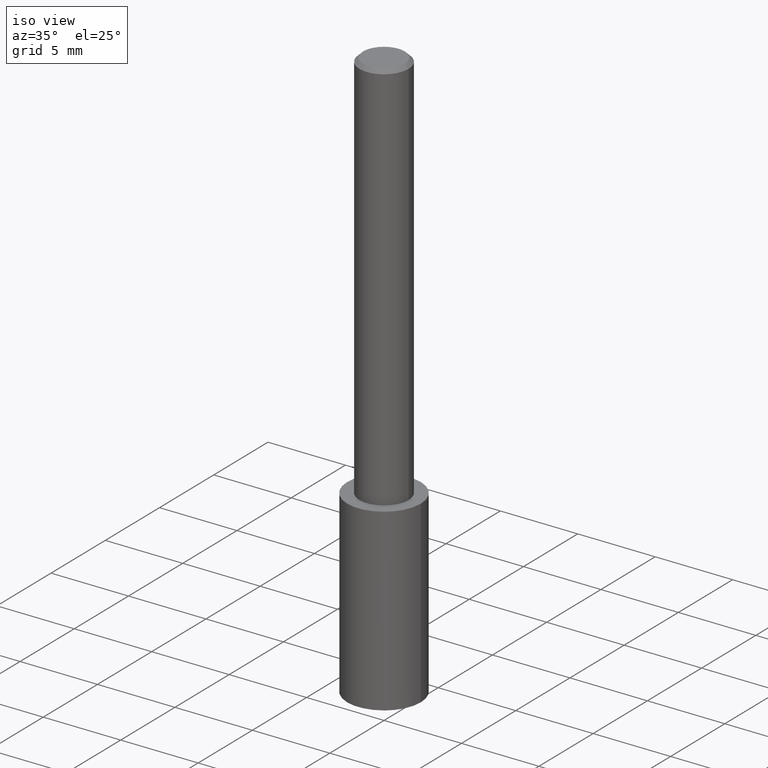
[diagram: clean part render]
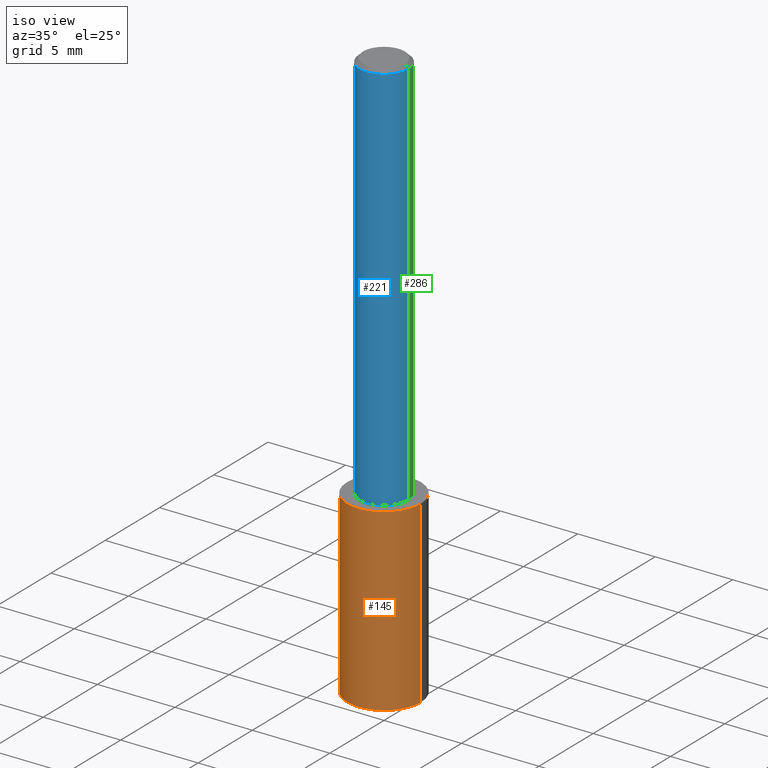
[diagram: same view with three faces highlighted in distinct colors, each labeled with its STEP entity id]
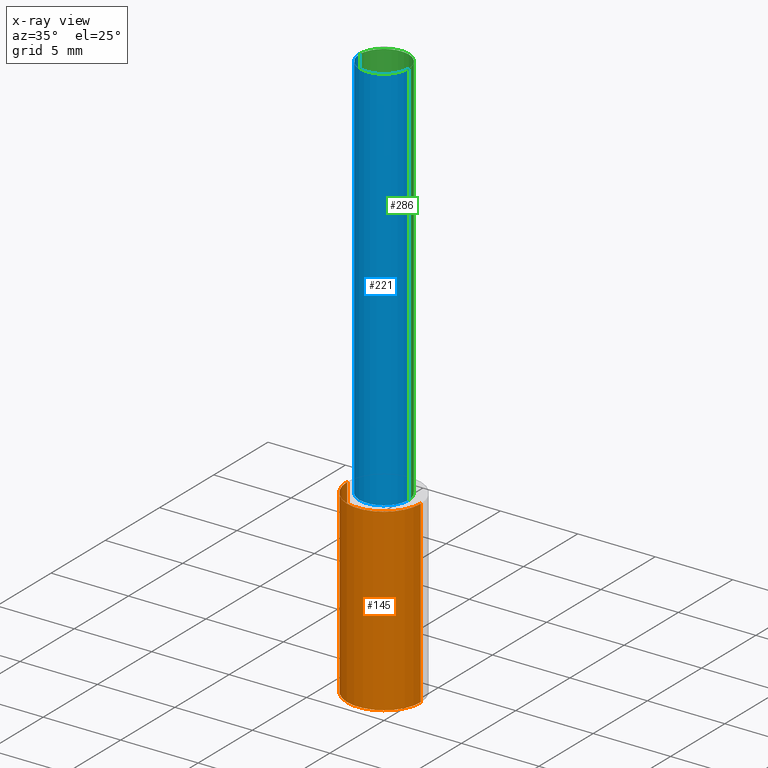
[diagram: x-ray of the same camera — body ghosted, the three highlighted faces saturated]
A machine part, iso view with three faces highlighted in distinct colors.
The next image is the same camera in x-ray (body ghosted, the three faces saturated) — at least one of them is partly hidden behind the body in this view.
Their STEP definitions:

[orange] entity #145 — the highlighted cylindrical surface (partial cylindrical patch) has radius 2.3749 mm, axis along (-0, 0, 1).
#4 = VERTEX_POINT ( 'NONE', #61 ) ;
#10 = DIRECTION ( 'NONE',  ( -2.445468806185136877E-29, 3.491481338843145188E-15, 1.000000000000000000 ) ) ;
#11 = CARTESIAN_POINT ( 'NONE',  ( 0.09349999999999998590, -5.737901249130553981E-15, -1.456400233962507951 ) ) ;
#22 = DIRECTION ( 'NONE',  ( -2.445468806185136597E-29, 3.491481338843145583E-15, 1.000000000000000000 ) ) ;
#33 = AXIS2_PLACEMENT_3D ( 'NONE', #330, #22, #116 ) ;
#39 = CARTESIAN_POINT ( 'NONE',  ( -0.09349999999999999978, -2.827123880907452502E-15, -1.000000000000000222 ) ) ;
#48 = LINE ( 'NONE', #39, #199 ) ;
#51 = AXIS2_PLACEMENT_3D ( 'NONE', #140, #115, #276 ) ;
#59 = DIRECTION ( 'NONE',  ( -2.445468806185136597E-29, 3.491481338843145583E-15, 1.000000000000000000 ) ) ;
#60 = EDGE_LOOP ( 'NONE', ( #101, #133, #235, #83 ) ) ;
#61 = CARTESIAN_POINT ( 'NONE',  ( -0.09349999999999999978, -3.623880330869323109E-15, -1.000000000000000222 ) ) ;
#63 = CARTESIAN_POINT ( 'NONE',  ( 3.561581341476047635E-29, -5.084994238766887980E-15, -1.456400233962507951 ) ) ;
#69 = EDGE_CURVE ( 'NONE', #79, #4, #48, .T. ) ;
#79 = VERTEX_POINT ( 'NONE', #238 ) ;
#83 = ORIENTED_EDGE ( 'NONE', *, *, #284, .F. ) ;
#95 = DIRECTION ( 'NONE',  ( -2.445468806185136877E-29, 3.491481338843145188E-15, 1.000000000000000000 ) ) ;
#101 = ORIENTED_EDGE ( 'NONE', *, *, #69, .F. ) ;
#110 = CIRCLE ( 'NONE', #307, 0.09349999999999999978 ) ;
#115 = DIRECTION ( 'NONE',  ( -2.445468806185136597E-29, 3.491481338843145583E-15, 1.000000000000000000 ) ) ;
#116 = DIRECTION ( 'NONE',  ( 1.000000000000000000, -6.982962677686265133E-15, 0.000000000000000000 ) ) ;
#118 = FACE_OUTER_BOUND ( 'NONE', #60, .T. ) ;
#121 = LINE ( 'NONE', #272, #262 ) ;
#133 = ORIENTED_EDGE ( 'NONE', *, *, #246, .T. ) ;
#140 = CARTESIAN_POINT ( 'NONE',  ( 2.445468806185137438E-29, -3.491481338843146371E-15, -1.000000000000000222 ) ) ;
#145 = ADVANCED_FACE ( 'NONE', ( #118 ), #217, .T. ) ;
#190 = EDGE_CURVE ( 'NONE', #265, #292, #121, .T. ) ;
#199 = VECTOR ( 'NONE', #10, 39.37007874015748143 ) ;
#217 = CYLINDRICAL_SURFACE ( 'NONE', #51, 0.09349999999999999978 ) ;
#227 = DIRECTION ( 'NONE',  ( 1.000000000000000000, -6.982962677686265133E-15, 0.000000000000000000 ) ) ;
#235 = ORIENTED_EDGE ( 'NONE', *, *, #190, .T. ) ;
#238 = CARTESIAN_POINT ( 'NONE',  ( -0.09349999999999998590, -4.420636780831194111E-15, -1.456400233962507951 ) ) ;
#246 = EDGE_CURVE ( 'NONE', #79, #265, #110, .T. ) ;
#257 = CARTESIAN_POINT ( 'NONE',  ( 0.09349999999999999978, -4.144388349206811978E-15, -1.000000000000000222 ) ) ;
#262 = VECTOR ( 'NONE', #95, 39.37007874015748143 ) ;
#265 = VERTEX_POINT ( 'NONE', #11 ) ;
#272 = CARTESIAN_POINT ( 'NONE',  ( 0.09349999999999999978, -4.144388349206811978E-15, -1.000000000000000222 ) ) ;
#276 = DIRECTION ( 'NONE',  ( 1.000000000000000000, -6.982962677686265133E-15, 0.000000000000000000 ) ) ;
#284 = EDGE_CURVE ( 'NONE', #4, #292, #336, .T. ) ;
#292 = VERTEX_POINT ( 'NONE', #257 ) ;
#307 = AXIS2_PLACEMENT_3D ( 'NONE', #63, #59, #227 ) ;
#330 = CARTESIAN_POINT ( 'NONE',  ( 2.445468806185136877E-29, -3.491481338843145977E-15, -1.000000000000000222 ) ) ;
#336 = CIRCLE ( 'NONE', #33, 0.09349999999999999978 ) ;

[blue] entity #221 — the highlighted cylindrical surface (edge-blend (fillet) strip) has radius 1.5875 mm, axis along (-0, 0, 1).
#1 = CARTESIAN_POINT ( 'NONE',  ( 0.06250000000000012490, -3.927916506198539224E-15, -1.000000000000000222 ) ) ;
#8 = ORIENTED_EDGE ( 'NONE', *, *, #222, .T. ) ;
#16 = CARTESIAN_POINT ( 'NONE',  ( -0.06250000000000006939, 4.440892098500631092E-16, -3.074334431409319267E-30 ) ) ;
#18 = DIRECTION ( 'NONE',  ( -2.445468806185136877E-29, 3.491481338843145188E-15, 1.000000000000000000 ) ) ;
#19 = DIRECTION ( 'NONE',  ( -2.445468806185136877E-29, 3.491481338843145188E-15, 1.000000000000000000 ) ) ;
#26 = VECTOR ( 'NONE', #18, 39.37007874015748143 ) ;
#35 = ORIENTED_EDGE ( 'NONE', *, *, #129, .F. ) ;
#46 = FACE_OUTER_BOUND ( 'NONE', #291, .T. ) ;
#50 = LINE ( 'NONE', #16, #231 ) ;
#68 = VERTEX_POINT ( 'NONE', #191 ) ;
#70 = DIRECTION ( 'NONE',  ( -2.445468806185136597E-29, 3.491481338843145583E-15, 1.000000000000000000 ) ) ;
#80 = VERTEX_POINT ( 'NONE', #242 ) ;
#85 = AXIS2_PLACEMENT_3D ( 'NONE', #306, #245, #100 ) ;
#92 = CARTESIAN_POINT ( 'NONE',  ( 0.06250000000000006939, -4.364351673553921624E-16, 3.047610484872463374E-30 ) ) ;
#100 = DIRECTION ( 'NONE',  ( 1.000000000000000000, -6.982962677686266711E-15, 0.000000000000000000 ) ) ;
#107 = ORIENTED_EDGE ( 'NONE', *, *, #166, .T. ) ;
#120 = LINE ( 'NONE', #92, #26 ) ;
#129 = EDGE_CURVE ( 'NONE', #68, #80, #50, .T. ) ;
#157 = VERTEX_POINT ( 'NONE', #274 ) ;
#166 = EDGE_CURVE ( 'NONE', #68, #205, #223, .T. ) ;
#172 = DIRECTION ( 'NONE',  ( -2.445468806185136597E-29, 3.491481338843145583E-15, 1.000000000000000000 ) ) ;
#191 = CARTESIAN_POINT ( 'NONE',  ( -0.06250000000000012490, -1.318017778347335489E-15, -1.000000000000000222 ) ) ;
#197 = CARTESIAN_POINT ( 'NONE',  ( 2.445468806185137438E-29, -3.491481338843146371E-15, -1.000000000000000222 ) ) ;
#198 = AXIS2_PLACEMENT_3D ( 'NONE', #316, #70, #334 ) ;
#205 = VERTEX_POINT ( 'NONE', #1 ) ;
#219 = AXIS2_PLACEMENT_3D ( 'NONE', #197, #172, #283 ) ;
#221 = ADVANCED_FACE ( 'NONE', ( #46 ), #313, .T. ) ;
#222 = EDGE_CURVE ( 'NONE', #205, #157, #120, .T. ) ;
#223 = CIRCLE ( 'NONE', #219, 0.06250000000000012490 ) ;
#231 = VECTOR ( 'NONE', #19, 39.37007874015748143 ) ;
#242 = CARTESIAN_POINT ( 'NONE',  ( -0.06250000000000000000, -1.318017778347336672E-15, -0.009375000000000060368 ) ) ;
#245 = DIRECTION ( 'NONE',  ( -2.445468806185136597E-29, 3.491481338843145583E-15, 1.000000000000000000 ) ) ;
#260 = ORIENTED_EDGE ( 'NONE', *, *, #282, .F. ) ;
#274 = CARTESIAN_POINT ( 'NONE',  ( 0.06250000000000000000, -4.691678049070463404E-16, -0.009375000000000060368 ) ) ;
#282 = EDGE_CURVE ( 'NONE', #80, #157, #297, .T. ) ;
#283 = DIRECTION ( 'NONE',  ( 1.000000000000000000, -6.982962677686264344E-15, 0.000000000000000000 ) ) ;
#291 = EDGE_LOOP ( 'NONE', ( #35, #107, #8, #260 ) ) ;
#297 = CIRCLE ( 'NONE', #85, 0.06250000000000000000 ) ;
#306 = CARTESIAN_POINT ( 'NONE',  ( 2.292627005798580186E-31, -3.273263755165470184E-17, -0.009375000000000060368 ) ) ;
#313 = CYLINDRICAL_SURFACE ( 'NONE', #198, 0.06250000000000006939 ) ;
#316 = CARTESIAN_POINT ( 'NONE',  ( 0.000000000000000000, 0.000000000000000000, 0.000000000000000000 ) ) ;
#334 = DIRECTION ( 'NONE',  ( 1.000000000000000000, -6.982962677686266711E-15, 4.876176775795935793E-29 ) ) ;

[green] entity #286 — the highlighted cylindrical surface (edge-blend (fillet) strip) has radius 1.5875 mm, axis along (-0, 0, 1).
#1 = CARTESIAN_POINT ( 'NONE',  ( 0.06250000000000012490, -3.927916506198539224E-15, -1.000000000000000222 ) ) ;
#16 = CARTESIAN_POINT ( 'NONE',  ( -0.06250000000000006939, 4.440892098500631092E-16, -3.074334431409319267E-30 ) ) ;
#18 = DIRECTION ( 'NONE',  ( -2.445468806185136877E-29, 3.491481338843145188E-15, 1.000000000000000000 ) ) ;
#19 = DIRECTION ( 'NONE',  ( -2.445468806185136877E-29, 3.491481338843145188E-15, 1.000000000000000000 ) ) ;
#20 = DIRECTION ( 'NONE',  ( 1.000000000000000000, -6.982962677686264344E-15, 0.000000000000000000 ) ) ;
#26 = VECTOR ( 'NONE', #18, 39.37007874015748143 ) ;
#29 = ORIENTED_EDGE ( 'NONE', *, *, #93, .T. ) ;
#40 = DIRECTION ( 'NONE',  ( -2.445468806185136597E-29, 3.491481338843145583E-15, 1.000000000000000000 ) ) ;
#50 = LINE ( 'NONE', #16, #231 ) ;
#68 = VERTEX_POINT ( 'NONE', #191 ) ;
#73 = AXIS2_PLACEMENT_3D ( 'NONE', #153, #171, #151 ) ;
#80 = VERTEX_POINT ( 'NONE', #242 ) ;
#92 = CARTESIAN_POINT ( 'NONE',  ( 0.06250000000000006939, -4.364351673553921624E-16, 3.047610484872463374E-30 ) ) ;
#93 = EDGE_CURVE ( 'NONE', #205, #68, #154, .T. ) ;
#120 = LINE ( 'NONE', #92, #26 ) ;
#123 = DIRECTION ( 'NONE',  ( 1.000000000000000000, -6.982962677686266711E-15, 4.876176775795935793E-29 ) ) ;
#129 = EDGE_CURVE ( 'NONE', #68, #80, #50, .T. ) ;
#151 = DIRECTION ( 'NONE',  ( 1.000000000000000000, -6.982962677686266711E-15, 0.000000000000000000 ) ) ;
#153 = CARTESIAN_POINT ( 'NONE',  ( 2.292627005798580186E-31, -3.273263755165470184E-17, -0.009375000000000060368 ) ) ;
#154 = CIRCLE ( 'NONE', #241, 0.06250000000000012490 ) ;
#157 = VERTEX_POINT ( 'NONE', #274 ) ;
#163 = FACE_OUTER_BOUND ( 'NONE', #228, .T. ) ;
#171 = DIRECTION ( 'NONE',  ( -2.445468806185136597E-29, 3.491481338843145583E-15, 1.000000000000000000 ) ) ;
#182 = EDGE_CURVE ( 'NONE', #157, #80, #277, .T. ) ;
#187 = CYLINDRICAL_SURFACE ( 'NONE', #211, 0.06250000000000006939 ) ;
#191 = CARTESIAN_POINT ( 'NONE',  ( -0.06250000000000012490, -1.318017778347335489E-15, -1.000000000000000222 ) ) ;
#202 = ORIENTED_EDGE ( 'NONE', *, *, #182, .F. ) ;
#205 = VERTEX_POINT ( 'NONE', #1 ) ;
#211 = AXIS2_PLACEMENT_3D ( 'NONE', #264, #40, #123 ) ;
#213 = CARTESIAN_POINT ( 'NONE',  ( 2.445468806185137438E-29, -3.491481338843146371E-15, -1.000000000000000222 ) ) ;
#218 = DIRECTION ( 'NONE',  ( -2.445468806185136597E-29, 3.491481338843145583E-15, 1.000000000000000000 ) ) ;
#222 = EDGE_CURVE ( 'NONE', #205, #157, #120, .T. ) ;
#228 = EDGE_LOOP ( 'NONE', ( #29, #294, #202, #281 ) ) ;
#231 = VECTOR ( 'NONE', #19, 39.37007874015748143 ) ;
#241 = AXIS2_PLACEMENT_3D ( 'NONE', #213, #218, #20 ) ;
#242 = CARTESIAN_POINT ( 'NONE',  ( -0.06250000000000000000, -1.318017778347336672E-15, -0.009375000000000060368 ) ) ;
#264 = CARTESIAN_POINT ( 'NONE',  ( 0.000000000000000000, 0.000000000000000000, 0.000000000000000000 ) ) ;
#274 = CARTESIAN_POINT ( 'NONE',  ( 0.06250000000000000000, -4.691678049070463404E-16, -0.009375000000000060368 ) ) ;
#277 = CIRCLE ( 'NONE', #73, 0.06250000000000000000 ) ;
#281 = ORIENTED_EDGE ( 'NONE', *, *, #222, .F. ) ;
#286 = ADVANCED_FACE ( 'NONE', ( #163 ), #187, .T. ) ;
#294 = ORIENTED_EDGE ( 'NONE', *, *, #129, .T. ) ;